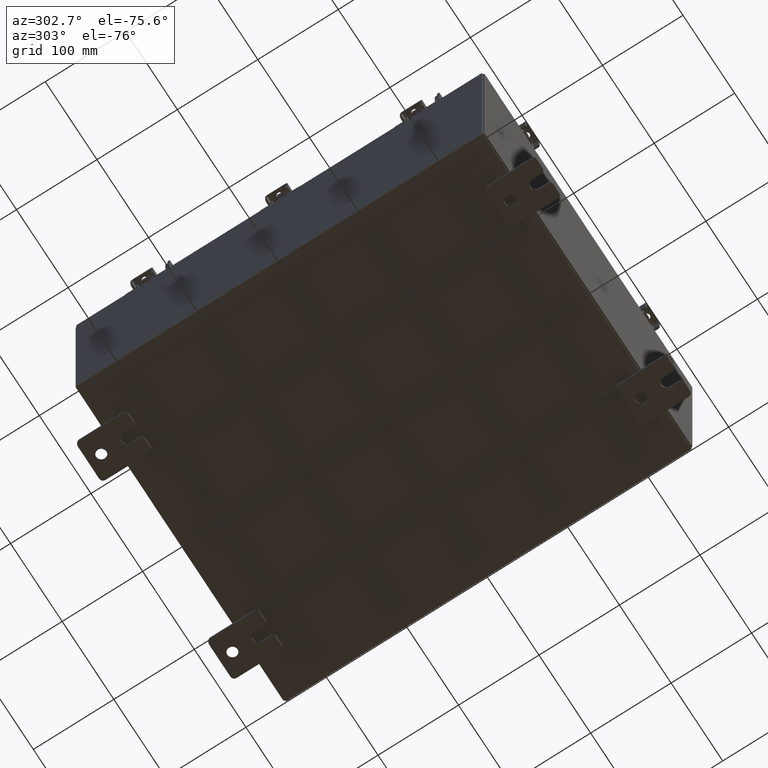
[diagram: clean part render]
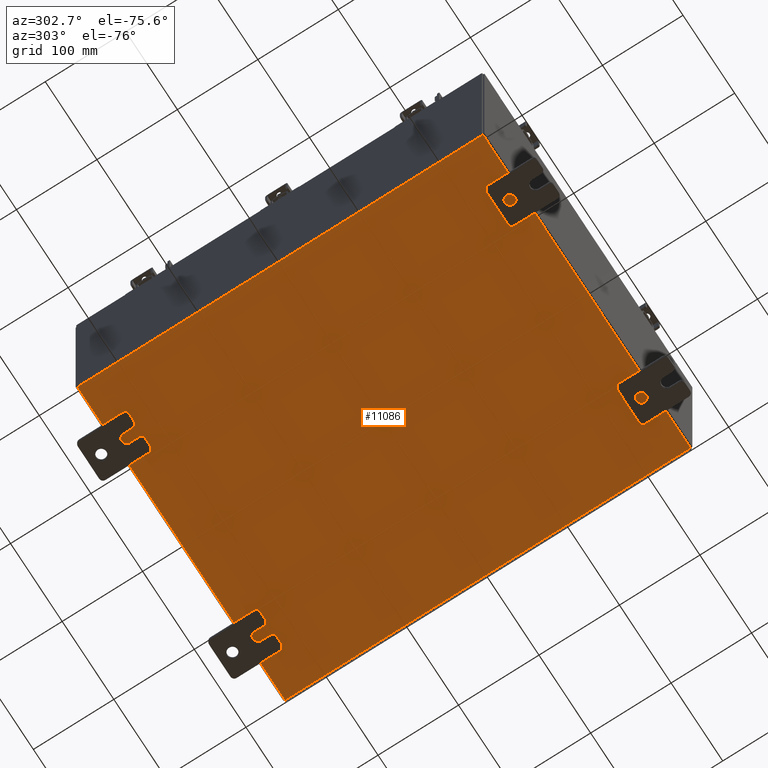
[diagram: same view with one face highlighted and labeled with its STEP entity id]
A machine part, auxiliary view. The second image highlights one B-rep face of the part: STEP entity #11086.
In plain terms, the highlighted planar face has unit normal (0, 0, -1).
Its self-contained STEP definition (entity closure, byte-faithful):
#1180 = VERTEX_POINT ( 'NONE', #8993 ) ;
#1614 = DIRECTION ( 'NONE',  ( -1.000000000000000000, -0.0000000000000000000, -0.0000000000000000000 ) ) ;
#1735 = EDGE_CURVE ( 'NONE', #10596, #1180, #5798, .T. ) ;
#2213 = PLANE ( 'NONE',  #5590 ) ;
#2723 = DIRECTION ( 'NONE',  ( 1.000000000000000000, 0.0000000000000000000, 0.0000000000000000000 ) ) ;
#3469 = CARTESIAN_POINT ( 'NONE',  ( -7.912299999999997400, -9.925300000000001800, -0.07469999999999996100 ) ) ;
#5590 = AXIS2_PLACEMENT_3D ( 'NONE', #17886, #7449, #19624 ) ;
#5798 = LINE ( 'NONE', #3469, #19124 ) ;
#7449 = DIRECTION ( 'NONE',  ( 0.0000000000000000000, 0.0000000000000000000, -1.000000000000000000 ) ) ;
#7550 = VECTOR ( 'NONE', #2723, 39.37007874015748100 ) ;
#8310 = CARTESIAN_POINT ( 'NONE',  ( 7.912300000000001900, -9.925300000000001800, -0.07469999999999998900 ) ) ;
#8378 = EDGE_CURVE ( 'NONE', #11434, #16142, #19183, .T. ) ;
#8993 = CARTESIAN_POINT ( 'NONE',  ( -7.912299999999997400, 9.925299999999998200, -0.07469999999999998900 ) ) ;
#9174 = CARTESIAN_POINT ( 'NONE',  ( 7.912300000000001900, 9.925299999999998200, -0.07469999999999996100 ) ) ;
#9796 = LINE ( 'NONE', #20791, #18529 ) ;
#10596 = VERTEX_POINT ( 'NONE', #14873 ) ;
#11086 = ADVANCED_FACE ( 'NONE', ( #22032 ), #2213, .T. ) ;
#11376 = CARTESIAN_POINT ( 'NONE',  ( -7.999999999999997300, -9.925300000000001800, -0.07469999999999998900 ) ) ;
#11434 = VERTEX_POINT ( 'NONE', #18645 ) ;
#12186 = LINE ( 'NONE', #11376, #7550 ) ;
#12314 = ORIENTED_EDGE ( 'NONE', *, *, #20387, .F. ) ;
#12674 = EDGE_LOOP ( 'NONE', ( #12314, #22448, #21711, #18885 ) ) ;
#13717 = EDGE_CURVE ( 'NONE', #11434, #1180, #9796, .T. ) ;
#14873 = CARTESIAN_POINT ( 'NONE',  ( -7.912299999999997400, -9.925300000000000000, -0.07469999999999996100 ) ) ;
#15101 = VECTOR ( 'NONE', #21322, 39.37007874015748100 ) ;
#16142 = VERTEX_POINT ( 'NONE', #8310 ) ;
#17886 = CARTESIAN_POINT ( 'NONE',  ( 0.0000000000000000000, 0.0000000000000000000, -0.07469999999999998900 ) ) ;
#18529 = VECTOR ( 'NONE', #1614, 39.37007874015748100 ) ;
#18645 = CARTESIAN_POINT ( 'NONE',  ( 7.912300000000001900, 9.925299999999992900, -0.07469999999999996100 ) ) ;
#18885 = ORIENTED_EDGE ( 'NONE', *, *, #8378, .T. ) ;
#19124 = VECTOR ( 'NONE', #20858, 39.37007874015748100 ) ;
#19183 = LINE ( 'NONE', #9174, #15101 ) ;
#19624 = DIRECTION ( 'NONE',  ( -1.000000000000000000, 0.0000000000000000000, -0.0000000000000000000 ) ) ;
#20387 = EDGE_CURVE ( 'NONE', #10596, #16142, #12186, .T. ) ;
#20791 = CARTESIAN_POINT ( 'NONE',  ( -7.999999999999997300, 9.925299999999998200, -0.07469999999999998900 ) ) ;
#20858 = DIRECTION ( 'NONE',  ( -0.0000000000000000000, 1.000000000000000000, -0.0000000000000000000 ) ) ;
#21322 = DIRECTION ( 'NONE',  ( -0.0000000000000000000, -1.000000000000000000, -0.0000000000000000000 ) ) ;
#21711 = ORIENTED_EDGE ( 'NONE', *, *, #13717, .F. ) ;
#22032 = FACE_OUTER_BOUND ( 'NONE', #12674, .T. ) ;
#22448 = ORIENTED_EDGE ( 'NONE', *, *, #1735, .T. ) ;